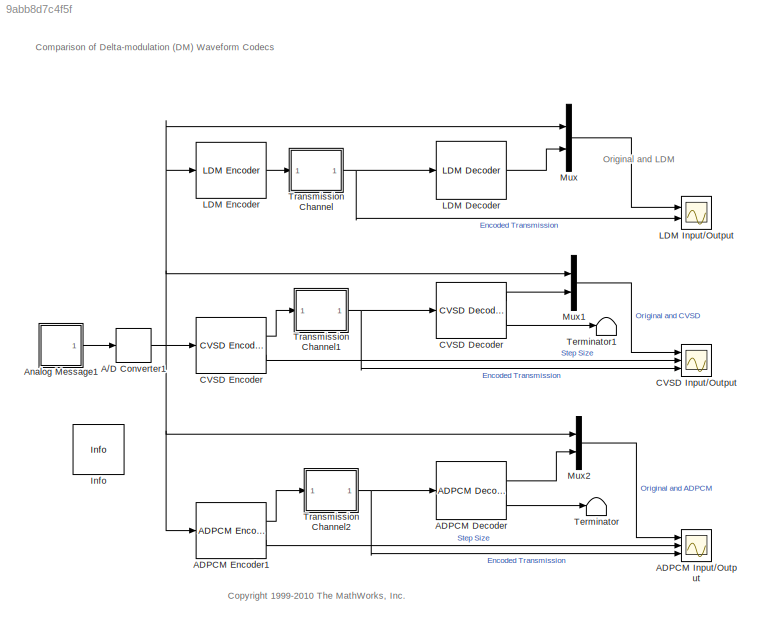
MODEL slx_9abb8d7c4f5f
KIND model
CONFIG AbsTol = auto
CONFIG EnableMultiTasking = on
CONFIG FixedStep = auto
CONFIG MaxStep = auto
CONFIG MinStep = auto
CONFIG RelTol = 1e-3
CONFIG SampleTimeConstraint = Unconstrained
CONFIG Solver = ode5
CONFIG SolverName = ode5
CONFIG StartTime = 0.0
CONFIG StopTime = inf
BLOCK [ZeroOrderHold] A//D Converter1
  SampleTime = 1/8000
BLOCK [Reference] ADPCM Decoder  REF=dspwvfmcdlib/ADPCM Decoder
  Ports = [1, 2]
  SourceBlock = dspwvfmcdlib/ADPCM Decoder
  SourceProductBaseCode = DS
  SourceProductName = DSP System Toolbox
  SourceType = ADPCM Decoder
BLOCK [Reference] ADPCM Encoder1  REF=dspwvfmcdlib/ADPCM Encoder
  Ports = [1, 2]
  SourceBlock = dspwvfmcdlib/ADPCM Encoder
  SourceProductBaseCode = DS
  SourceProductName = DSP System Toolbox
  SourceType = ADPCM Encoder
BLOCK [Scope] ADPCM Input//Output
  NumInputPorts = 3
  Ports = [3]
  ScopeSpecificationString = C++SS(StrPVP('Location','[23, 679, 673, 1074]'),StrPVP('Open','off'),MxPVP('AxesTitles',53,'struct(''axes1'',''%<SignalLabel>'',''axes2'',''%<SignalLabel>'',''axes3'',''%<SignalLabel>'')'),StrPVP('ShowLegends','off'),StrPVP('TimeRange','0.02'),StrPVP('YMin','-1.25~-0.75~-1.2'),StrPVP('YMax','1.25~0.75~1.2'),StrPVP('SaveName','ScopeData2'),StrPVP('BlockParamSampleTime','0'),StrPVP('LimitDataPoints'...<+99ch>
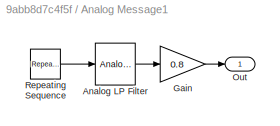
BLOCK [SubSystem] Analog Message1
  Ports = [0, 1]
  RequestExecContextInheritance = off
  Variant = off
BLOCK [Reference] Analog Message1/Analog LP Filter  REF=dsparch4/Analog
Filter Design
  Ports = [1, 1]
  SourceBlock = dsparch4/Analog\nFilter Design
  SourceProductBaseCode = DS
  SourceProductName = DSP System Toolbox
  SourceType = Analog Filter Design
BLOCK [Gain] Analog Message1/Gain
  Gain = 0.8
BLOCK [Outport] Analog Message1/Out
  IconDisplay = Port number
BLOCK [Reference] Analog Message1/Repeating Sequence  REF=simulink/Sources/Repeating
Sequence
  Ports = [0, 1]
  SourceBlock = simulink/Sources/Repeating\nSequence
  SourceProductBaseCode = SL
  SourceProductName = Simulink
  SourceType = Repeating table
BLOCK [Reference] CVSD Decoder  REF=dspwvfmcdlib/CVSD Decoder
  Ports = [1, 2]
  SourceBlock = dspwvfmcdlib/CVSD Decoder
  SourceProductBaseCode = DS
  SourceProductName = DSP System Toolbox
  SourceType = CVSD Decoder
BLOCK [Reference] CVSD Encoder  REF=dspwvfmcdlib/CVSD Encoder
  Ports = [1, 2]
  SourceBlock = dspwvfmcdlib/CVSD Encoder
  SourceProductBaseCode = DS
  SourceProductName = DSP System Toolbox
  SourceType = CVSD Encoder
BLOCK [Scope] CVSD Input//Output
  NumInputPorts = 3
  Ports = [3]
  ScopeSpecificationString = C++SS(StrPVP('Location','[686, 689, 1336, 1074]'),StrPVP('Open','off'),MxPVP('AxesTitles',53,'struct(''axes1'',''%<SignalLabel>'',''axes2'',''%<SignalLabel>'',''axes3'',''%<SignalLabel>'')'),StrPVP('ShowLegends','off'),StrPVP('TimeRange','0.02'),StrPVP('YMin','-1.25~-5~-0.1'),StrPVP('YMax','1.25~5~1.1'),StrPVP('SaveName','ScopeData1'),StrPVP('BlockParamSampleTime','0'),StrPVP('LimitDataPoints','on...<+95ch>
BLOCK [Reference] Info  REF=dspmisc/Info
  Ports = []
  SourceBlock = dspmisc/Info
  SourceProductBaseCode = DS
  SourceProductName = DSP System Toolbox
  SourceType = Info
BLOCK [Reference] LDM Decoder  REF=dspwvfmcdlib/LDM Decoder
  Ports = [1, 1]
  SourceBlock = dspwvfmcdlib/LDM Decoder
  SourceProductBaseCode = DS
  SourceProductName = DSP System Toolbox
  SourceType = LDM Decoder
BLOCK [Reference] LDM Encoder  REF=dspwvfmcdlib/LDM Encoder
  Ports = [1, 1]
  SourceBlock = dspwvfmcdlib/LDM Encoder
  SourceProductBaseCode = DS
  SourceProductName = DSP System Toolbox
  SourceType = LDM Encoder
BLOCK [Scope] LDM Input//Output
  NumInputPorts = 2
  Ports = [2]
  ScopeSpecificationString = C++SS(StrPVP('Location','[688, 419, 1337, 685]'),StrPVP('Open','off'),MxPVP('AxesTitles',53,'struct(''axes1'',''Original and LDM'',''axes2'',''%<SignalLabel>'')'),StrPVP('ShowLegends','off'),StrPVP('TimeRange','0.02'),StrPVP('YMin','-1.25~-0.1'),StrPVP('YMax','1.25~1.1'),StrPVP('BlockParamSampleTime','0'),StrPVP('LimitDataPoints','on'),StrPVP('DataFormat','Array'),StrPVP('Decimation','1'),StrPVP('...<+30ch>
BLOCK [Mux] Mux
  DisplayOption = bar
  Inputs = 2
  Ports = [2, 1]
BLOCK [Mux] Mux1
  DisplayOption = bar
  Inputs = 2
  Ports = [2, 1]
BLOCK [Mux] Mux2
  DisplayOption = bar
  Inputs = 2
  Ports = [2, 1]
BLOCK [Terminator] Terminator
BLOCK [Terminator] Terminator1
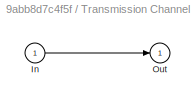
BLOCK [SubSystem] Transmission Channel
  Ports = [1, 1]
  RequestExecContextInheritance = off
  Variant = off
BLOCK [Inport] Transmission Channel/In
  IconDisplay = Port number
BLOCK [Outport] Transmission Channel/Out
  IconDisplay = Port number
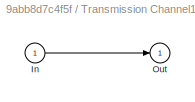
BLOCK [SubSystem] Transmission Channel1
  Ports = [1, 1]
  RequestExecContextInheritance = off
  Variant = off
BLOCK [Inport] Transmission Channel1/In
  IconDisplay = Port number
BLOCK [Outport] Transmission Channel1/Out
  IconDisplay = Port number
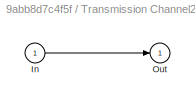
BLOCK [SubSystem] Transmission Channel2
  Ports = [1, 1]
  RequestExecContextInheritance = off
  Variant = off
BLOCK [Inport] Transmission Channel2/In
  IconDisplay = Port number
BLOCK [Outport] Transmission Channel2/Out
  IconDisplay = Port number
ANNOTATION (root): Comparison of Delta-modulation (DM) Waveform Codecs
ANNOTATION (root): <copyright redacted>
ANNOTATION (root): Original and LDM
NET A//D Converter1:1 -> ADPCM Encoder1:1, CVSD Encoder:1, LDM Encoder:1, Mux1:1, Mux2:1, Mux:1
LINE ADPCM Decoder:1 -> Mux2:2
LINE ADPCM Decoder:2 -> Terminator:1
LINE ADPCM Encoder1:1 -> Transmission Channel2:1
LINE ADPCM Encoder1:2 -> ADPCM Input//Output:2
LINE Analog Message1/Analog LP Filter:1 -> Analog Message1/Gain:1
LINE Analog Message1/Gain:1 -> Analog Message1/Out:1
LINE Analog Message1/Repeating Sequence:1 -> Analog Message1/Analog LP Filter:1
LINE Analog Message1:1 -> A//D Converter1:1
LINE CVSD Decoder:1 -> Mux1:2
LINE CVSD Decoder:2 -> Terminator1:1
LINE CVSD Encoder:1 -> Transmission Channel1:1
LINE CVSD Encoder:2 -> CVSD Input//Output:2
LINE LDM Decoder:1 -> Mux:2
LINE LDM Encoder:1 -> Transmission Channel:1
LINE Mux1:1 -> CVSD Input//Output:1
LINE Mux2:1 -> ADPCM Input//Output:1
LINE Mux:1 -> LDM Input//Output:1
LINE Transmission Channel/In:1 -> Transmission Channel/Out:1
LINE Transmission Channel1/In:1 -> Transmission Channel1/Out:1
NET Transmission Channel1:1 -> CVSD Decoder:1, CVSD Input//Output:3
LINE Transmission Channel2/In:1 -> Transmission Channel2/Out:1
NET Transmission Channel2:1 -> ADPCM Decoder:1, ADPCM Input//Output:3
NET Transmission Channel:1 -> LDM Decoder:1, LDM Input//Output:2
note: NET lines group one-source signal fan-out (src -> all destinations, sorted); 1:1 wires keep LINE
